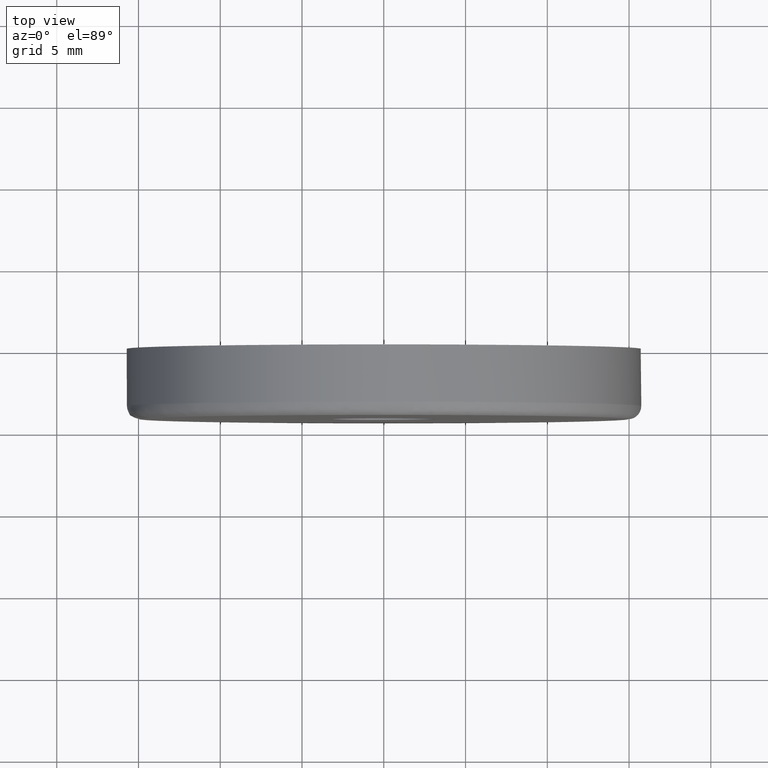
[diagram: clean part render]
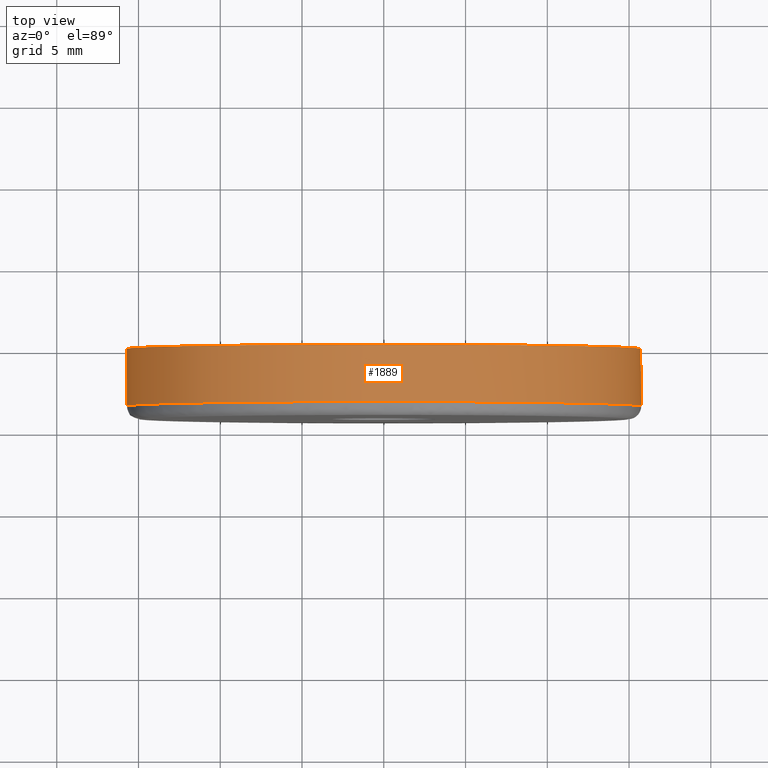
[diagram: same view with one face highlighted and labeled with its STEP entity id]
A machine part, top view. The second image highlights one B-rep face of the part: STEP entity #1889.
In plain terms, the highlighted face is a freeform B-spline surface patch.
Its self-contained STEP definition (entity closure, byte-faithful):
#1749=CARTESIAN_POINT('',(8.547979569080434,0.087500000003493,-13.228550384928175));
#1750=CARTESIAN_POINT('',(9.314254317890438,0.087500000003493,-12.733401581277484));
#1751=CARTESIAN_POINT('',(10.018231969374780,0.087500000003493,-12.153087188356590));
#1752=CARTESIAN_POINT('',(22.171319157731364,0.087500000003493,-2.134855218981807));
#1753=CARTESIAN_POINT('',(12.153087188356590,0.087500000003493,10.018231969374780));
#1754=CARTESIAN_POINT('',(2.134855218981807,0.087500000003493,22.171319157731364));
#1755=CARTESIAN_POINT('',(-10.018231969374780,0.087500000003493,12.153087188356590));
#1756=CARTESIAN_POINT('',(-22.171319157731364,0.087500000003493,2.134855218981807));
#1757=CARTESIAN_POINT('',(-12.153087188356590,0.087500000003493,-10.018231969374780));
#1758=CARTESIAN_POINT('',(8.547979569080434,-3.589687500143294,-13.228550384928175));
#1759=CARTESIAN_POINT('',(9.314254317890438,-3.589687500143294,-12.733401581277484));
#1760=CARTESIAN_POINT('',(10.018231969374780,-3.589687500143293,-12.153087188356590));
#1761=CARTESIAN_POINT('',(22.171319157731364,-3.589687500143292,-2.134855218981807));
#1762=CARTESIAN_POINT('',(12.153087188356590,-3.589687500143293,10.018231969374780));
#1763=CARTESIAN_POINT('',(2.134855218981807,-3.589687500143292,22.171319157731364));
#1764=CARTESIAN_POINT('',(-10.018231969374780,-3.589687500143293,12.153087188356590));
#1765=CARTESIAN_POINT('',(-22.171319157731364,-3.589687500143292,2.134855218981807));
#1766=CARTESIAN_POINT('',(-12.153087188356590,-3.589687500143293,-10.018231969374780));
#1774=(BOUNDED_SURFACE()B_SPLINE_SURFACE(2,1,((#1749,#1758),(#1750,#1759),(#1751,#1760),(#1752,#1761),(#1753,#1762),(#1754,#1763),(#1755,#1764),(#1756,#1765),(#1757,#1766)),.UNSPECIFIED.,.F.,.F.,.U.)B_SPLINE_SURFACE_WITH_KNOTS((3,2,2,2,3),(2,2),(0.0,2.087636354360398,28.183090783865389,54.278545213370379,80.373999642875361),(0.0,3.677187500146786),.UNSPECIFIED.)GEOMETRIC_REPRESENTATION_ITEM()RATIONAL_B_SPLINE_SURFACE(((0.956886118190660,0.956886118190660),(0.976568542494924,0.976568542494924),(1.0,1.0),(0.707106781186548,0.707106781186548),(1.0,1.0),(0.707106781186548,0.707106781186548),(1.0,1.0),(0.707106781186548,0.707106781186548),(1.0,1.0)))REPRESENTATION_ITEM('')SURFACE());
#1775=CARTESIAN_POINT('',(8.547979167013278,-3.500000000049371,-13.228550878465970));
#1776=VERTEX_POINT('',#1775);
#1777=CARTESIAN_POINT('',(15.748758446052090,-3.500000000139130,-0.197915153302955));
#1778=VERTEX_POINT('',#1777);
#1779=CARTESIAN_POINT('',(8.547979167013278,-3.500000000049371,-13.228550878465976));
#1780=CARTESIAN_POINT('',(15.642613596224688,-3.500000000101350,-8.644166077439046));
#1781=CARTESIAN_POINT('',(15.748758446052085,-3.500000000139130,-0.197915153302955));
#1789=(BOUNDED_CURVE()B_SPLINE_CURVE(2,(#1779,#1780,#1781),.UNSPECIFIED.,.F.,.U.)B_SPLINE_CURVE_WITH_KNOTS((3,3),(0.092934725483944,0.247784295921638),.UNSPECIFIED.)CURVE()GEOMETRIC_REPRESENTATION_ITEM()RATIONAL_B_SPLINE_CURVE((0.863190110134160,0.816652480132345,0.994854295643805))REPRESENTATION_ITEM(''));
#1790=EDGE_CURVE('',#1776,#1778,#1789,.T.);
#1791=ORIENTED_EDGE('',*,*,#1790,.F.);
#1792=CARTESIAN_POINT('',(8.547979103585050,-7.976689E-017,-13.228550685720380));
#1793=VERTEX_POINT('',#1792);
#1794=CARTESIAN_POINT('',(8.547979103585050,-7.976689E-017,-13.228550685720380));
#1795=CARTESIAN_POINT('',(8.547979167013278,-3.500000000049371,-13.228550878465970));
#1796=QUASI_UNIFORM_CURVE('',1,(#1794,#1795),.UNSPECIFIED.,.F.,.U.);
#1797=EDGE_CURVE('',#1793,#1776,#1796,.T.);
#1798=ORIENTED_EDGE('',*,*,#1797,.F.);
#1799=CARTESIAN_POINT('',(0.0,0.0,15.750000000000000));
#1800=VERTEX_POINT('',#1799);
#1801=CARTESIAN_POINT('',(8.547979103585050,-7.976689E-017,-13.228550685720377));
#1802=CARTESIAN_POINT('',(15.750000000000009,0.0,-8.574774105322605));
#1803=CARTESIAN_POINT('',(15.750000000000000,0.0,-5.695187E-016));
#1804=CARTESIAN_POINT('',(15.749999999999995,0.0,15.749999999999995));
#1805=CARTESIAN_POINT('',(0.0,0.0,15.750000000000000));
#1813=(BOUNDED_CURVE()B_SPLINE_CURVE(2,(#1801,#1802,#1803,#1804,#1805),.UNSPECIFIED.,.F.,.U.)B_SPLINE_CURVE_WITH_KNOTS((3,2,3),(0.092934732206239,0.250000000000000,0.500000000000000),.UNSPECIFIED.)CURVE()GEOMETRIC_REPRESENTATION_ITEM()RATIONAL_B_SPLINE_CURVE((0.863190106093599,0.815986592608353,1.0,0.707106781186547,1.0))REPRESENTATION_ITEM(''));
#1814=EDGE_CURVE('',#1793,#1800,#1813,.T.);
#1815=ORIENTED_EDGE('',*,*,#1814,.T.);
#1816=CARTESIAN_POINT('',(-12.153087403182800,-8.326673E-017,-10.018231708769729));
#1817=VERTEX_POINT('',#1816);
#1818=CARTESIAN_POINT('',(0.0,0.0,15.750000000000000));
#1819=CARTESIAN_POINT('',(-15.749999999999995,0.0,15.749999999999995));
#1820=CARTESIAN_POINT('',(-15.750000000000000,0.0,-5.695187E-016));
#1821=CARTESIAN_POINT('',(-15.750000000000002,0.0,-5.654827432314525));
#1822=CARTESIAN_POINT('',(-12.153087403182800,-8.326673E-017,-10.018231708769733));
#1830=(BOUNDED_CURVE()B_SPLINE_CURVE(2,(#1818,#1819,#1820,#1821,#1822),.UNSPECIFIED.,.F.,.U.)B_SPLINE_CURVE_WITH_KNOTS((3,2,3),(0.500000000000000,0.750000000000000,0.860504619373458),.UNSPECIFIED.)CURVE()GEOMETRIC_REPRESENTATION_ITEM()RATIONAL_B_SPLINE_CURVE((1.0,0.707106781186547,1.0,0.870535785351809,0.855522720801075))REPRESENTATION_ITEM(''));
#1831=EDGE_CURVE('',#1800,#1817,#1830,.T.);
#1832=ORIENTED_EDGE('',*,*,#1831,.T.);
#1833=CARTESIAN_POINT('',(-12.153088230401339,-3.500000000075693,-10.018231323085290));
#1834=VERTEX_POINT('',#1833);
#1835=CARTESIAN_POINT('',(-12.153087403182800,-8.326673E-017,-10.018231708769729));
#1836=CARTESIAN_POINT('',(-12.153088230401339,-3.500000000075693,-10.018231323085290));
#1837=QUASI_UNIFORM_CURVE('',1,(#1835,#1836),.UNSPECIFIED.,.F.,.U.);
#1838=EDGE_CURVE('',#1817,#1834,#1837,.T.);
#1839=ORIENTED_EDGE('',*,*,#1838,.T.);
#1840=CARTESIAN_POINT('',(-15.711661358117819,-3.500000000139713,1.098298851784505));
#1841=VERTEX_POINT('',#1840);
#1842=CARTESIAN_POINT('',(-15.711661358117825,-3.500000000139713,1.098298851784504));
#1843=CARTESIAN_POINT('',(-15.750001962656556,-3.500000000137439,0.549818712225517));
#1844=CARTESIAN_POINT('',(-15.750001927832420,-3.500000000135000,0.000000134762082));
#1845=CARTESIAN_POINT('',(-15.750001569669754,-3.500000000109918,-5.654827469213649));
#1846=CARTESIAN_POINT('',(-12.153088230401345,-3.500000000075692,-10.018231323085285));
#1854=(BOUNDED_CURVE()B_SPLINE_CURVE(2,(#1842,#1843,#1844,#1845,#1846),.UNSPECIFIED.,.F.,.U.)B_SPLINE_CURVE_WITH_KNOTS((3,2,3),(0.737833686535082,0.750000000000000,0.860504621867789),.UNSPECIFIED.)CURVE()GEOMETRIC_REPRESENTATION_ITEM()RATIONAL_B_SPLINE_CURVE((0.972879876386956,0.985746277152667,1.0,0.870535782429519,0.855522720123320))REPRESENTATION_ITEM(''));
#1855=EDGE_CURVE('',#1841,#1834,#1854,.T.);
#1856=ORIENTED_EDGE('',*,*,#1855,.F.);
#1857=CARTESIAN_POINT('',(0.0,-3.500000000000000,15.750000000000000));
#1858=VERTEX_POINT('',#1857);
#1859=CARTESIAN_POINT('',(0.0,-3.500000000000000,15.750000000000000));
#1860=CARTESIAN_POINT('',(-14.687456342010448,-3.500000000069855,15.750000069733252));
#1861=CARTESIAN_POINT('',(-15.711661358117825,-3.500000000139713,1.098298851784504));
#1869=(BOUNDED_CURVE()B_SPLINE_CURVE(2,(#1859,#1860,#1861),.UNSPECIFIED.,.F.,.U.)B_SPLINE_CURVE_WITH_KNOTS((3,3),(0.500000000000000,0.737833686535082),.UNSPECIFIED.)CURVE()GEOMETRIC_REPRESENTATION_ITEM()RATIONAL_B_SPLINE_CURVE((1.0,0.721360504033880,0.972879876386956))REPRESENTATION_ITEM(''));
#1870=EDGE_CURVE('',#1858,#1841,#1869,.T.);
#1871=ORIENTED_EDGE('',*,*,#1870,.F.);
#1872=CARTESIAN_POINT('',(15.748758446052085,-3.500000000139130,-0.197915153302955));
#1873=CARTESIAN_POINT('',(15.750001993637772,-3.500000000138698,-0.098961495930409));
#1874=CARTESIAN_POINT('',(15.750001987355001,-3.500000000138262,-0.000000024975153));
#1875=CARTESIAN_POINT('',(15.750000987433959,-3.500000000068697,15.749999987590881));
#1876=CARTESIAN_POINT('',(0.0,-3.500000000000000,15.750000000000000));
#1884=(BOUNDED_CURVE()B_SPLINE_CURVE(2,(#1872,#1873,#1874,#1875,#1876),.UNSPECIFIED.,.F.,.U.)B_SPLINE_CURVE_WITH_KNOTS((3,2,3),(0.247784295921638,0.250000000000000,0.500000000000000),.UNSPECIFIED.)CURVE()GEOMETRIC_REPRESENTATION_ITEM()RATIONAL_B_SPLINE_CURVE((0.994854295643805,0.997404141202202,1.0,0.707106781186547,1.0))REPRESENTATION_ITEM(''));
#1885=EDGE_CURVE('',#1778,#1858,#1884,.T.);
#1886=ORIENTED_EDGE('',*,*,#1885,.F.);
#1887=EDGE_LOOP('',(#1791,#1798,#1815,#1832,#1839,#1856,#1871,#1886));
#1888=FACE_OUTER_BOUND('',#1887,.T.);
#1889=ADVANCED_FACE('',(#1888),#1774,.T.);